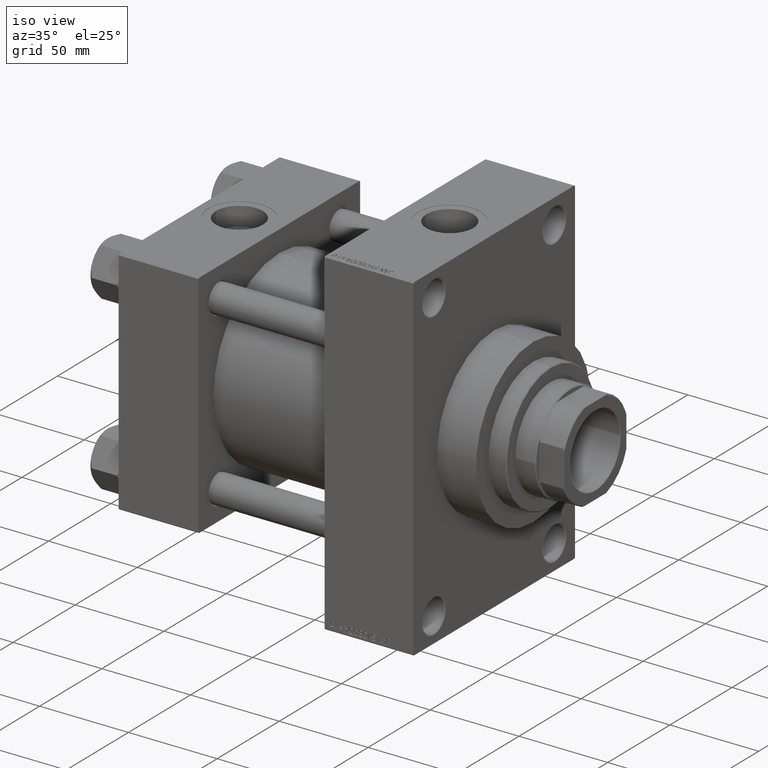
[diagram: clean part render]
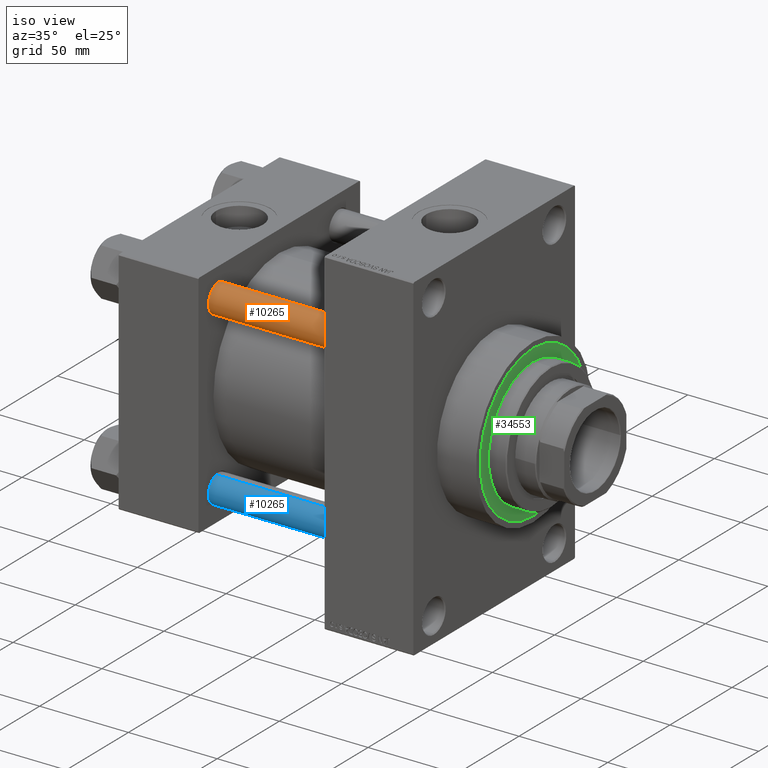
[diagram: same view with three faces highlighted in distinct colors, each labeled with its STEP entity id]
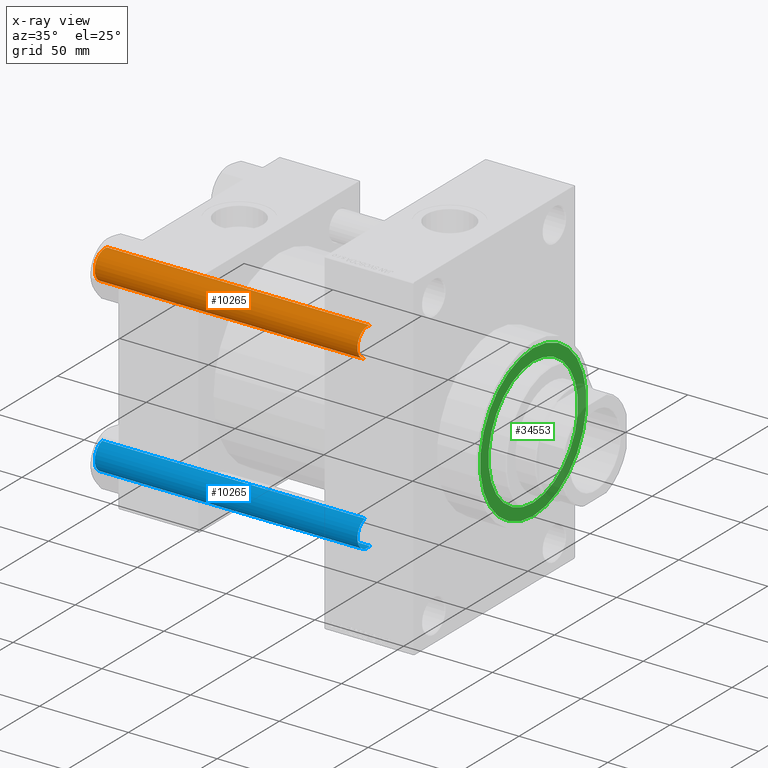
[diagram: x-ray of the same camera — body ghosted, the three highlighted faces saturated]
A machine part, iso view with three faces highlighted in distinct colors.
The next image is the same camera in x-ray (body ghosted, the three faces saturated) — at least one of them is partly hidden behind the body in this view.
Their STEP definitions:

[orange] entity #10265 — the highlighted cylindrical surface (edge-blend (fillet) strip) has radius 8 mm, axis along (1, 0, 0).
#1211 = DIRECTION ( 'NONE',  ( -0.000000000000000000, -0.000000000000000000, -1.000000000000000000 ) ) ;
#1463 = DIRECTION ( 'NONE',  ( -0.000000000000000000, -0.000000000000000000, -1.000000000000000000 ) ) ;
#1727 = AXIS2_PLACEMENT_3D ( 'NONE', #44087, #1211, #16582 ) ;
#3837 = CARTESIAN_POINT ( 'NONE',  ( -8.000000000000000000, 0.000000000000000000, 0.5000000000000281997 ) ) ;
#6000 = ORIENTED_EDGE ( 'NONE', *, *, #16089, .T. ) ;
#10265 = ADVANCED_FACE ( 'NONE', ( #43841 ), #13037, .T. ) ;
#11520 = EDGE_CURVE ( 'NONE', #38096, #20703, #17575, .T. ) ;
#12871 = DIRECTION ( 'NONE',  ( -0.000000000000000000, -0.000000000000000000, 1.000000000000000000 ) ) ;
#13037 = CYLINDRICAL_SURFACE ( 'NONE', #1727, 8.000000000000000000 ) ;
#14328 = ORIENTED_EDGE ( 'NONE', *, *, #17675, .T. ) ;
#16089 = EDGE_CURVE ( 'NONE', #20832, #18435, #47313, .T. ) ;
#16582 = DIRECTION ( 'NONE',  ( -1.000000000000000000, 0.000000000000000000, 0.000000000000000000 ) ) ;
#17575 = LINE ( 'NONE', #40787, #29955 ) ;
#17675 = EDGE_CURVE ( 'NONE', #38096, #20832, #34571, .T. ) ;
#18435 = VERTEX_POINT ( 'NONE', #23608 ) ;
#20703 = VERTEX_POINT ( 'NONE', #3837 ) ;
#20832 = VERTEX_POINT ( 'NONE', #20956 ) ;
#20956 = CARTESIAN_POINT ( 'NONE',  ( 8.000000000000000000, 9.797174393178825657E-16, 148.5000000000000000 ) ) ;
#23261 = AXIS2_PLACEMENT_3D ( 'NONE', #40548, #28951, #28462 ) ;
#23608 = CARTESIAN_POINT ( 'NONE',  ( 8.000000000000000000, 9.797174393178825657E-16, 0.5000000000000281997 ) ) ;
#24486 = DIRECTION ( 'NONE',  ( 1.000000000000000000, 0.000000000000000000, 0.000000000000000000 ) ) ;
#27475 = ORIENTED_EDGE ( 'NONE', *, *, #47217, .T. ) ;
#28462 = DIRECTION ( 'NONE',  ( 1.000000000000000000, 0.000000000000000000, 0.000000000000000000 ) ) ;
#28951 = DIRECTION ( 'NONE',  ( 0.000000000000000000, 0.000000000000000000, -1.000000000000000000 ) ) ;
#29955 = VECTOR ( 'NONE', #1463, 1000.000000000000000 ) ;
#34453 = ORIENTED_EDGE ( 'NONE', *, *, #11520, .F. ) ;
#34571 = CIRCLE ( 'NONE', #23261, 8.000000000000000000 ) ;
#35262 = VECTOR ( 'NONE', #44451, 1000.000000000000000 ) ;
#35849 = CARTESIAN_POINT ( 'NONE',  ( 0.000000000000000000, 0.000000000000000000, 0.5000000000000281997 ) ) ;
#38096 = VERTEX_POINT ( 'NONE', #49243 ) ;
#39153 = AXIS2_PLACEMENT_3D ( 'NONE', #35849, #12871, #24486 ) ;
#40548 = CARTESIAN_POINT ( 'NONE',  ( 0.000000000000000000, 0.000000000000000000, 148.5000000000000000 ) ) ;
#40787 = CARTESIAN_POINT ( 'NONE',  ( -8.000000000000000000, 0.000000000000000000, 149.0000000000000000 ) ) ;
#41565 = CIRCLE ( 'NONE', #39153, 8.000000000000000000 ) ;
#43841 = FACE_OUTER_BOUND ( 'NONE', #44088, .T. ) ;
#44087 = CARTESIAN_POINT ( 'NONE',  ( 0.000000000000000000, 0.000000000000000000, 149.0000000000000000 ) ) ;
#44088 = EDGE_LOOP ( 'NONE', ( #14328, #6000, #27475, #34453 ) ) ;
#44451 = DIRECTION ( 'NONE',  ( -0.000000000000000000, -0.000000000000000000, -1.000000000000000000 ) ) ;
#47217 = EDGE_CURVE ( 'NONE', #18435, #20703, #41565, .T. ) ;
#47313 = LINE ( 'NONE', #48729, #35262 ) ;
#48729 = CARTESIAN_POINT ( 'NONE',  ( 8.000000000000000000, 9.797174393178825657E-16, 149.0000000000000000 ) ) ;
#49243 = CARTESIAN_POINT ( 'NONE',  ( -8.000000000000000000, 0.000000000000000000, 148.5000000000000000 ) ) ;

[blue] entity #10265 — the highlighted cylindrical surface (edge-blend (fillet) strip) has radius 8 mm, axis along (-1, 0, 0).
#1211 = DIRECTION ( 'NONE',  ( -0.000000000000000000, -0.000000000000000000, -1.000000000000000000 ) ) ;
#1463 = DIRECTION ( 'NONE',  ( -0.000000000000000000, -0.000000000000000000, -1.000000000000000000 ) ) ;
#1727 = AXIS2_PLACEMENT_3D ( 'NONE', #44087, #1211, #16582 ) ;
#3837 = CARTESIAN_POINT ( 'NONE',  ( -8.000000000000000000, 0.000000000000000000, 0.5000000000000281997 ) ) ;
#6000 = ORIENTED_EDGE ( 'NONE', *, *, #16089, .T. ) ;
#10265 = ADVANCED_FACE ( 'NONE', ( #43841 ), #13037, .T. ) ;
#11520 = EDGE_CURVE ( 'NONE', #38096, #20703, #17575, .T. ) ;
#12871 = DIRECTION ( 'NONE',  ( -0.000000000000000000, -0.000000000000000000, 1.000000000000000000 ) ) ;
#13037 = CYLINDRICAL_SURFACE ( 'NONE', #1727, 8.000000000000000000 ) ;
#14328 = ORIENTED_EDGE ( 'NONE', *, *, #17675, .T. ) ;
#16089 = EDGE_CURVE ( 'NONE', #20832, #18435, #47313, .T. ) ;
#16582 = DIRECTION ( 'NONE',  ( -1.000000000000000000, 0.000000000000000000, 0.000000000000000000 ) ) ;
#17575 = LINE ( 'NONE', #40787, #29955 ) ;
#17675 = EDGE_CURVE ( 'NONE', #38096, #20832, #34571, .T. ) ;
#18435 = VERTEX_POINT ( 'NONE', #23608 ) ;
#20703 = VERTEX_POINT ( 'NONE', #3837 ) ;
#20832 = VERTEX_POINT ( 'NONE', #20956 ) ;
#20956 = CARTESIAN_POINT ( 'NONE',  ( 8.000000000000000000, 9.797174393178825657E-16, 148.5000000000000000 ) ) ;
#23261 = AXIS2_PLACEMENT_3D ( 'NONE', #40548, #28951, #28462 ) ;
#23608 = CARTESIAN_POINT ( 'NONE',  ( 8.000000000000000000, 9.797174393178825657E-16, 0.5000000000000281997 ) ) ;
#24486 = DIRECTION ( 'NONE',  ( 1.000000000000000000, 0.000000000000000000, 0.000000000000000000 ) ) ;
#27475 = ORIENTED_EDGE ( 'NONE', *, *, #47217, .T. ) ;
#28462 = DIRECTION ( 'NONE',  ( 1.000000000000000000, 0.000000000000000000, 0.000000000000000000 ) ) ;
#28951 = DIRECTION ( 'NONE',  ( 0.000000000000000000, 0.000000000000000000, -1.000000000000000000 ) ) ;
#29955 = VECTOR ( 'NONE', #1463, 1000.000000000000000 ) ;
#34453 = ORIENTED_EDGE ( 'NONE', *, *, #11520, .F. ) ;
#34571 = CIRCLE ( 'NONE', #23261, 8.000000000000000000 ) ;
#35262 = VECTOR ( 'NONE', #44451, 1000.000000000000000 ) ;
#35849 = CARTESIAN_POINT ( 'NONE',  ( 0.000000000000000000, 0.000000000000000000, 0.5000000000000281997 ) ) ;
#38096 = VERTEX_POINT ( 'NONE', #49243 ) ;
#39153 = AXIS2_PLACEMENT_3D ( 'NONE', #35849, #12871, #24486 ) ;
#40548 = CARTESIAN_POINT ( 'NONE',  ( 0.000000000000000000, 0.000000000000000000, 148.5000000000000000 ) ) ;
#40787 = CARTESIAN_POINT ( 'NONE',  ( -8.000000000000000000, 0.000000000000000000, 149.0000000000000000 ) ) ;
#41565 = CIRCLE ( 'NONE', #39153, 8.000000000000000000 ) ;
#43841 = FACE_OUTER_BOUND ( 'NONE', #44088, .T. ) ;
#44087 = CARTESIAN_POINT ( 'NONE',  ( 0.000000000000000000, 0.000000000000000000, 149.0000000000000000 ) ) ;
#44088 = EDGE_LOOP ( 'NONE', ( #14328, #6000, #27475, #34453 ) ) ;
#44451 = DIRECTION ( 'NONE',  ( -0.000000000000000000, -0.000000000000000000, -1.000000000000000000 ) ) ;
#47217 = EDGE_CURVE ( 'NONE', #18435, #20703, #41565, .T. ) ;
#47313 = LINE ( 'NONE', #48729, #35262 ) ;
#48729 = CARTESIAN_POINT ( 'NONE',  ( 8.000000000000000000, 9.797174393178825657E-16, 149.0000000000000000 ) ) ;
#49243 = CARTESIAN_POINT ( 'NONE',  ( -8.000000000000000000, 0.000000000000000000, 148.5000000000000000 ) ) ;

[green] entity #34553 — the highlighted planar face has unit normal (1, -0, -0).
#256 = VERTEX_POINT ( 'NONE', #33524 ) ;
#775 = DIRECTION ( 'NONE',  ( 0.000000000000000000, 0.000000000000000000, 1.000000000000000000 ) ) ;
#4604 = PLANE ( 'NONE',  #32470 ) ;
#9383 = EDGE_LOOP ( 'NONE', ( #13990, #24077 ) ) ;
#9548 = DIRECTION ( 'NONE',  ( 0.000000000000000000, 0.000000000000000000, 1.000000000000000000 ) ) ;
#12017 = CIRCLE ( 'NONE', #29745, 42.75000000000000000 ) ;
#13582 = DIRECTION ( 'NONE',  ( 1.000000000000000000, 0.000000000000000000, 0.000000000000000000 ) ) ;
#13990 = ORIENTED_EDGE ( 'NONE', *, *, #23551, .T. ) ;
#14745 = CIRCLE ( 'NONE', #34089, 36.00000000000000000 ) ;
#15022 = DIRECTION ( 'NONE',  ( 0.000000000000000000, 0.000000000000000000, 1.000000000000000000 ) ) ;
#15260 = CIRCLE ( 'NONE', #33806, 42.75000000000000000 ) ;
#15355 = VERTEX_POINT ( 'NONE', #40339 ) ;
#16698 = FACE_OUTER_BOUND ( 'NONE', #9383, .T. ) ;
#17377 = DIRECTION ( 'NONE',  ( 0.000000000000000000, 0.000000000000000000, 1.000000000000000000 ) ) ;
#17760 = DIRECTION ( 'NONE',  ( 0.000000000000000000, 0.000000000000000000, 1.000000000000000000 ) ) ;
#19403 = EDGE_LOOP ( 'NONE', ( #32676, #45776 ) ) ;
#22003 = EDGE_CURVE ( 'NONE', #35182, #42611, #12017, .T. ) ;
#23551 = EDGE_CURVE ( 'NONE', #42611, #35182, #15260, .T. ) ;
#23724 = CARTESIAN_POINT ( 'NONE',  ( 0.000000000000000000, 0.000000000000000000, 43.25999999999999801 ) ) ;
#24077 = ORIENTED_EDGE ( 'NONE', *, *, #22003, .T. ) ;
#25337 = DIRECTION ( 'NONE',  ( 1.000000000000000000, 0.000000000000000000, 0.000000000000000000 ) ) ;
#29745 = AXIS2_PLACEMENT_3D ( 'NONE', #37305, #17377, #32767 ) ;
#32470 = AXIS2_PLACEMENT_3D ( 'NONE', #45569, #15022, #34450 ) ;
#32676 = ORIENTED_EDGE ( 'NONE', *, *, #48844, .F. ) ;
#32767 = DIRECTION ( 'NONE',  ( 1.000000000000000000, 0.000000000000000000, 0.000000000000000000 ) ) ;
#32786 = CARTESIAN_POINT ( 'NONE',  ( 42.75000000000000000, 5.235365066354935472E-15, 43.25999999999999801 ) ) ;
#33524 = CARTESIAN_POINT ( 'NONE',  ( 36.00000000000000000, 4.408728476930470856E-15, 43.25999999999999801 ) ) ;
#33806 = AXIS2_PLACEMENT_3D ( 'NONE', #40968, #17760, #25337 ) ;
#34089 = AXIS2_PLACEMENT_3D ( 'NONE', #23724, #775, #38873 ) ;
#34450 = DIRECTION ( 'NONE',  ( 1.000000000000000000, 0.000000000000000000, -0.000000000000000000 ) ) ;
#34553 = ADVANCED_FACE ( 'NONE', ( #49593, #16698 ), #4604, .T. ) ;
#34791 = EDGE_CURVE ( 'NONE', #256, #15355, #14745, .T. ) ;
#35182 = VERTEX_POINT ( 'NONE', #32786 ) ;
#37305 = CARTESIAN_POINT ( 'NONE',  ( 0.000000000000000000, 0.000000000000000000, 43.25999999999999801 ) ) ;
#38873 = DIRECTION ( 'NONE',  ( 1.000000000000000000, 0.000000000000000000, 0.000000000000000000 ) ) ;
#40339 = CARTESIAN_POINT ( 'NONE',  ( -36.00000000000000000, 0.000000000000000000, 43.25999999999999801 ) ) ;
#40759 = CIRCLE ( 'NONE', #48839, 36.00000000000000000 ) ;
#40968 = CARTESIAN_POINT ( 'NONE',  ( 0.000000000000000000, 0.000000000000000000, 43.25999999999999801 ) ) ;
#42611 = VERTEX_POINT ( 'NONE', #45424 ) ;
#44139 = CARTESIAN_POINT ( 'NONE',  ( 0.000000000000000000, 0.000000000000000000, 43.25999999999999801 ) ) ;
#45424 = CARTESIAN_POINT ( 'NONE',  ( -42.75000000000000000, 0.000000000000000000, 43.25999999999999801 ) ) ;
#45569 = CARTESIAN_POINT ( 'NONE',  ( 0.000000000000000000, 0.000000000000000000, 43.25999999999999801 ) ) ;
#45776 = ORIENTED_EDGE ( 'NONE', *, *, #34791, .F. ) ;
#48839 = AXIS2_PLACEMENT_3D ( 'NONE', #44139, #9548, #13582 ) ;
#48844 = EDGE_CURVE ( 'NONE', #15355, #256, #40759, .T. ) ;
#49593 = FACE_BOUND ( 'NONE', #19403, .T. ) ;